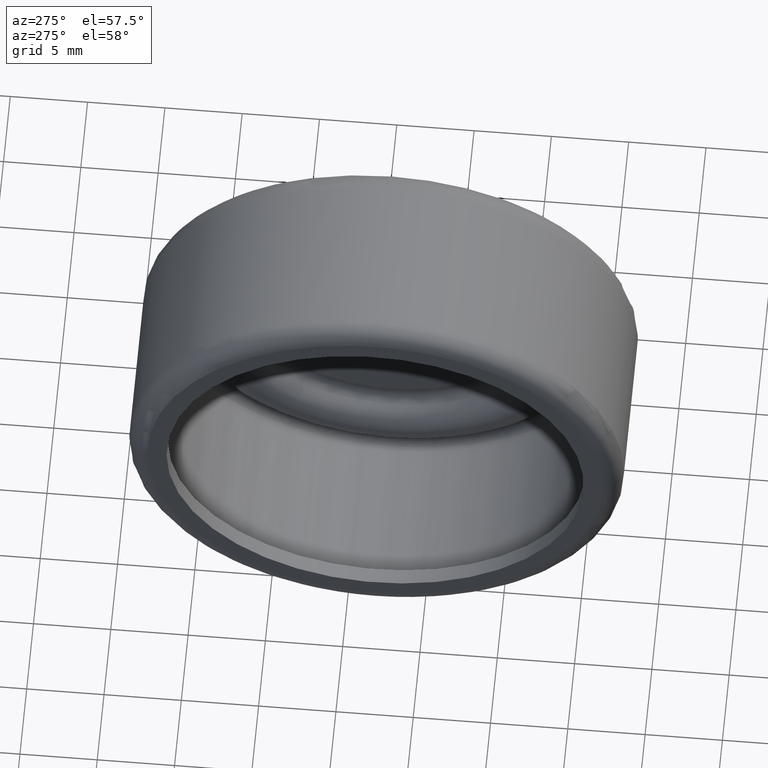
[diagram: clean part render]
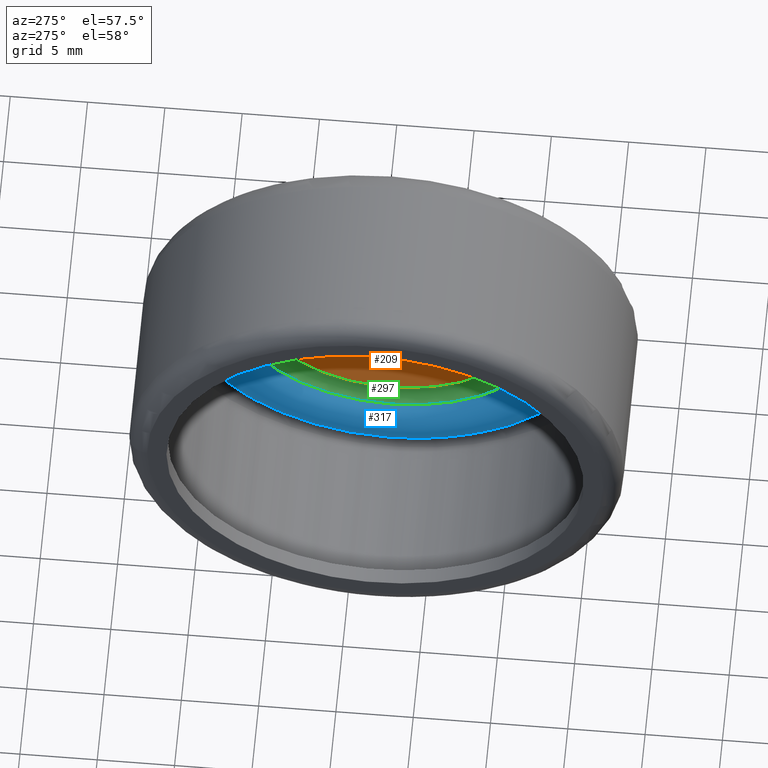
[diagram: same view with three faces highlighted in distinct colors, each labeled with its STEP entity id]
A machine part, auxiliary view with three faces highlighted in distinct colors.
Their STEP definitions:

[orange] entity #209 — the highlighted planar face has unit normal (-1, 0, 0).
#193=CARTESIAN_POINT('',(0.026024801001286,7.571678515661020,0.0));
#194=DIRECTION('',(-1.0,0.0,0.0));
#195=DIRECTION('',(0.0,0.0,1.0));
#196=AXIS2_PLACEMENT_3D('',#193,#194,#195);
#197=PLANE('',#196);
#198=CARTESIAN_POINT('',(0.026024801001286,11.975504375429944,0.0));
#199=VERTEX_POINT('',#198);
#200=CARTESIAN_POINT('',(0.026024801001286,3.167852655892097,0.0));
#201=DIRECTION('',(1.0,0.0,0.0));
#202=DIRECTION('',(0.0,1.0,0.0));
#203=AXIS2_PLACEMENT_3D('',#200,#201,#202);
#204=CIRCLE('',#203,8.807651719537846);
#205=EDGE_CURVE('',#199,#199,#204,.T.);
#206=ORIENTED_EDGE('',*,*,#205,.F.);
#207=EDGE_LOOP('',(#206));
#208=FACE_OUTER_BOUND('',#207,.T.);
#209=ADVANCED_FACE('',(#208),#197,.T.);

[blue] entity #317 — the highlighted toroidal blend (fillet) surface has major radius 12.0785 mm and minor (blend) radius 2 mm.
#283=CARTESIAN_POINT('',(-0.327685882876412,13.486633701116080,0.0));
#284=VERTEX_POINT('',#283);
#285=CARTESIAN_POINT('',(-0.327685882876412,3.167852655892097,0.0));
#286=DIRECTION('',(1.0,0.0,0.0));
#287=DIRECTION('',(0.0,1.0,0.0));
#288=AXIS2_PLACEMENT_3D('',#285,#286,#287);
#289=CIRCLE('',#288,10.318781045223982);
#290=EDGE_CURVE('',#284,#284,#289,.T.);
#298=CARTESIAN_POINT('',(0.622695283639010,3.167852655892096,0.0));
#299=DIRECTION('',(1.0,0.0,0.0));
#300=DIRECTION('',(0.0,0.0,-1.0));
#301=AXIS2_PLACEMENT_3D('',#298,#299,#300);
#302=TOROIDAL_SURFACE('',#301,12.078546835985012,1.999999999999997);
#303=CARTESIAN_POINT('',(-0.301222390758492,17.020202223562883,0.0));
#304=VERTEX_POINT('',#303);
#305=CARTESIAN_POINT('',(-0.301222390758492,3.167852655892097,0.0));
#306=DIRECTION('',(1.0,0.0,0.0));
#307=DIRECTION('',(0.0,1.0,0.0));
#308=AXIS2_PLACEMENT_3D('',#305,#306,#307);
#309=CIRCLE('',#308,13.852349567670785);
#310=EDGE_CURVE('',#304,#304,#309,.T.);
#311=ORIENTED_EDGE('',*,*,#310,.F.);
#312=EDGE_LOOP('',(#311));
#313=FACE_OUTER_BOUND('',#312,.T.);
#314=ORIENTED_EDGE('',*,*,#290,.T.);
#315=EDGE_LOOP('',(#314));
#316=FACE_BOUND('',#315,.T.);
#317=ADVANCED_FACE('',(#313,#316),#302,.T.);

[green] entity #297 — the highlighted face is a freeform B-spline surface patch.
#215=CARTESIAN_POINT('',(0.060244547574203,12.101753661491069,0.0));
#216=VERTEX_POINT('',#215);
#217=CARTESIAN_POINT('',(0.060244547574203,3.167852655892097,0.0));
#218=DIRECTION('',(1.0,0.0,0.0));
#219=DIRECTION('',(0.0,1.0,0.0));
#220=AXIS2_PLACEMENT_3D('',#217,#218,#219);
#221=CIRCLE('',#220,8.933901005598971);
#222=EDGE_CURVE('',#216,#216,#221,.T.);
#230=CARTESIAN_POINT('',(-0.327685882876412,3.167852655892096,10.318781045223973));
#231=CARTESIAN_POINT('',(0.197123533865870,3.167852655892096,10.035351859192282));
#232=CARTESIAN_POINT('',(0.197123533865870,3.167852655892096,9.438898149843467));
#233=CARTESIAN_POINT('',(0.197123533865870,3.167852655892096,8.842444440494653));
#234=CARTESIAN_POINT('',(-0.327685882876412,3.167852655892096,8.559015254462961));
#235=CARTESIAN_POINT('',(-0.327685882876412,-7.150928389331876,10.318781045223970));
#236=CARTESIAN_POINT('',(0.197123533865870,-6.867499203300183,10.035351859192279));
#237=CARTESIAN_POINT('',(0.197123533865870,-6.271045493951370,9.438898149843464));
#238=CARTESIAN_POINT('',(0.197123533865870,-5.674591784602555,8.842444440494649));
#239=CARTESIAN_POINT('',(-0.327685882876412,-5.391162598570864,8.559015254462958));
#240=CARTESIAN_POINT('',(-0.327685882876412,-7.150928389331877,-1.332268E-015));
#241=CARTESIAN_POINT('',(0.197123533865870,-6.867499203300184,-1.332268E-015));
#242=CARTESIAN_POINT('',(0.197123533865870,-6.271045493951371,-1.332268E-015));
#243=CARTESIAN_POINT('',(0.197123533865870,-5.674591784602556,-1.332268E-015));
#244=CARTESIAN_POINT('',(-0.327685882876412,-5.391162598570864,-1.332268E-015));
#245=CARTESIAN_POINT('',(-0.327685882876412,-7.150928389331873,-10.318781045223973));
#246=CARTESIAN_POINT('',(0.197123533865870,-6.867499203300183,-10.035351859192282));
#247=CARTESIAN_POINT('',(0.197123533865870,-6.271045493951367,-9.438898149843467));
#248=CARTESIAN_POINT('',(0.197123533865870,-5.674591784602553,-8.842444440494653));
#249=CARTESIAN_POINT('',(-0.327685882876412,-5.391162598570862,-8.559015254462961));
#250=CARTESIAN_POINT('',(-0.327685882876412,3.167852655892098,-10.318781045223973));
#251=CARTESIAN_POINT('',(0.197123533865870,3.167852655892098,-10.035351859192282));
#252=CARTESIAN_POINT('',(0.197123533865870,3.167852655892098,-9.438898149843467));
#253=CARTESIAN_POINT('',(0.197123533865870,3.167852655892098,-8.842444440494653));
#254=CARTESIAN_POINT('',(-0.327685882876412,3.167852655892098,-8.559015254462961));
#255=CARTESIAN_POINT('',(-0.327685882876412,13.486633701116073,-10.318781045223970));
#256=CARTESIAN_POINT('',(0.197123533865870,13.203204515084380,-10.035351859192279));
#257=CARTESIAN_POINT('',(0.197123533865870,12.606750805735564,-9.438898149843464));
#258=CARTESIAN_POINT('',(0.197123533865870,12.010297096386749,-8.842444440494649));
#259=CARTESIAN_POINT('',(-0.327685882876412,11.726867910355059,-8.559015254462958));
#260=CARTESIAN_POINT('',(-0.327685882876412,13.486633701116070,1.332268E-015));
#261=CARTESIAN_POINT('',(0.197123533865870,13.203204515084380,1.332268E-015));
#262=CARTESIAN_POINT('',(0.197123533865870,12.606750805735565,1.332268E-015));
#263=CARTESIAN_POINT('',(0.197123533865870,12.010297096386752,1.332268E-015));
#264=CARTESIAN_POINT('',(-0.327685882876412,11.726867910355057,1.332268E-015));
#265=CARTESIAN_POINT('',(-0.327685882876412,13.486633701116068,10.318781045223973));
#266=CARTESIAN_POINT('',(0.197123533865870,13.203204515084373,10.035351859192282));
#267=CARTESIAN_POINT('',(0.197123533865870,12.606750805735562,9.438898149843467));
#268=CARTESIAN_POINT('',(0.197123533865870,12.010297096386745,8.842444440494653));
#269=CARTESIAN_POINT('',(-0.327685882876412,11.726867910355056,8.559015254462961));
#270=CARTESIAN_POINT('',(-0.327685882876412,3.167852655892096,10.318781045223973));
#271=CARTESIAN_POINT('',(0.197123533865870,3.167852655892096,10.035351859192282));
#272=CARTESIAN_POINT('',(0.197123533865870,3.167852655892096,9.438898149843467));
#273=CARTESIAN_POINT('',(0.197123533865870,3.167852655892096,8.842444440494653));
#274=CARTESIAN_POINT('',(-0.327685882876412,3.167852655892096,8.559015254462961));
#282=(BOUNDED_SURFACE()B_SPLINE_SURFACE(2,2,((#230,#235,#240,#245,#250,#255,#260,#265,#270),(#231,#236,#241,#246,#251,#256,#261,#266,#271),(#232,#237,#242,#247,#252,#257,#262,#267,#272),(#233,#238,#243,#248,#253,#258,#263,#268,#273),(#234,#239,#244,#249,#254,#259,#264,#269,#274)),.UNSPECIFIED.,.F.,.T.,.U.)B_SPLINE_SURFACE_WITH_KNOTS((3,2,3),(3,2,2,2,3),(0.495180619758916,1.570796326794897,2.646412033830877),(0.0,1.570796326794897,3.141592653589793,4.712388980384690,6.283185307179586),.UNSPECIFIED.)GEOMETRIC_REPRESENTATION_ITEM()RATIONAL_B_SPLINE_SURFACE(((1.0,0.707106781186548,1.0,0.707106781186548,1.0,0.707106781186548,1.0,0.707106781186548,1.0),(0.858833681005153,0.607287119750148,0.858833681005153,0.607287119750148,0.858833681005153,0.607287119750148,0.858833681005153,0.607287119750148,0.858833681005153),(1.0,0.707106781186548,1.0,0.707106781186548,1.0,0.707106781186548,1.0,0.707106781186548,1.0),(0.858833681005152,0.607287119750147,0.858833681005152,0.607287119750147,0.858833681005152,0.607287119750147,0.858833681005152,0.607287119750147,0.858833681005152),(1.0,0.707106781186548,1.0,0.707106781186548,1.0,0.707106781186548,1.0,0.707106781186548,1.0)))REPRESENTATION_ITEM('')SURFACE());
#283=CARTESIAN_POINT('',(-0.327685882876412,13.486633701116080,0.0));
#284=VERTEX_POINT('',#283);
#285=CARTESIAN_POINT('',(-0.327685882876412,3.167852655892097,0.0));
#286=DIRECTION('',(1.0,0.0,0.0));
#287=DIRECTION('',(0.0,1.0,0.0));
#288=AXIS2_PLACEMENT_3D('',#285,#286,#287);
#289=CIRCLE('',#288,10.318781045223982);
#290=EDGE_CURVE('',#284,#284,#289,.T.);
#291=ORIENTED_EDGE('',*,*,#290,.F.);
#292=EDGE_LOOP('',(#291));
#293=FACE_OUTER_BOUND('',#292,.T.);
#294=ORIENTED_EDGE('',*,*,#222,.T.);
#295=EDGE_LOOP('',(#294));
#296=FACE_BOUND('',#295,.T.);
#297=ADVANCED_FACE('',(#293,#296),#282,.T.);